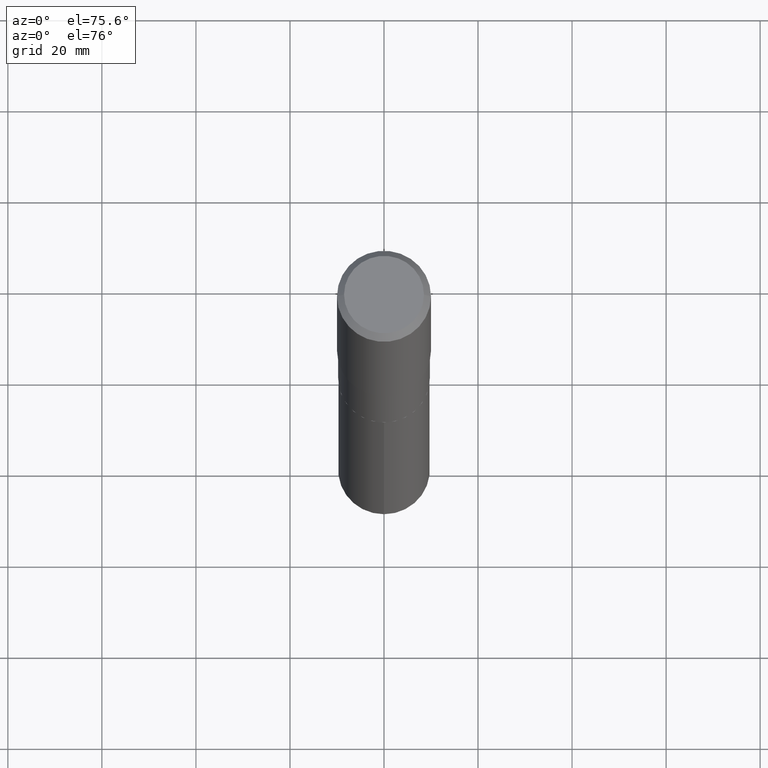
[diagram: clean part render]
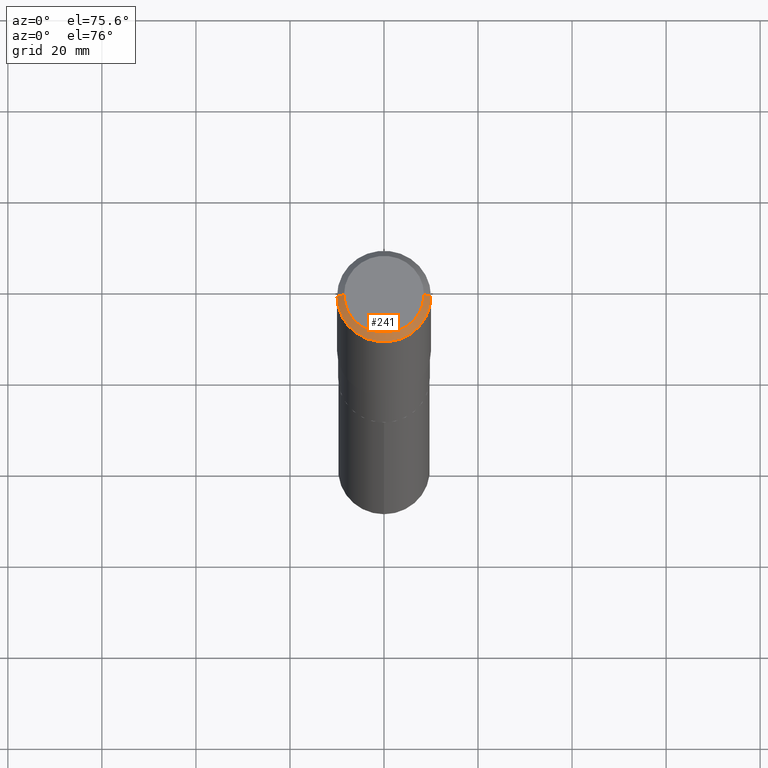
[diagram: same view with one face highlighted and labeled with its STEP entity id]
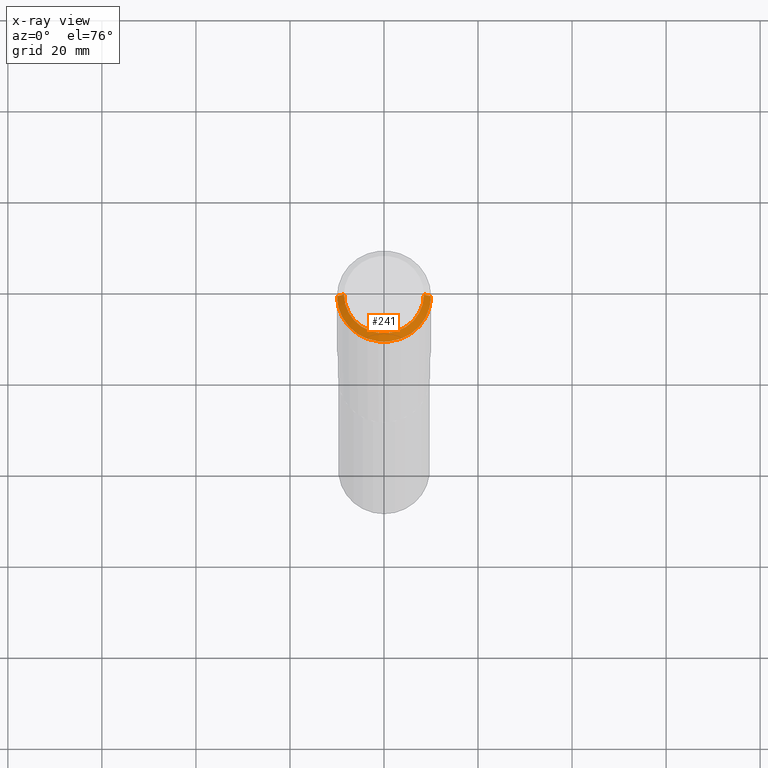
[diagram: x-ray of the same camera — body ghosted, the highlighted face saturated]
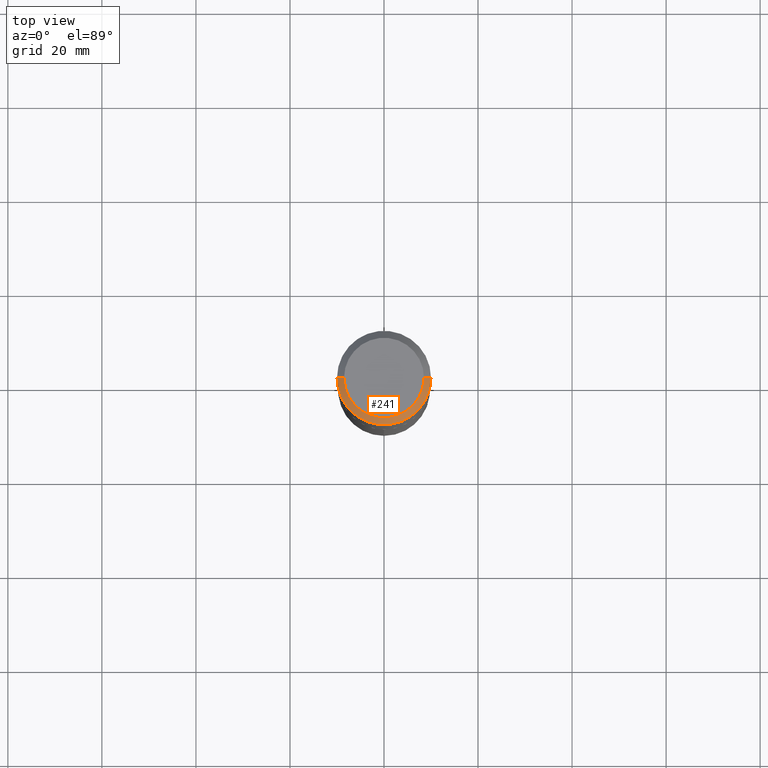
[diagram: same view with one face highlighted and labeled with its STEP entity id]
A machine part, auxiliary view. The second image highlights one B-rep face of the part: STEP entity #241.
The next image is the same camera in x-ray: the body ghosted, the highlighted face saturated — about 0% of this face is hidden behind the body in this view.
A second angle (top view) of the same face is appended — the face is thin or edge-on in the first view.
In plain terms, the highlighted conical surface has half-angle 45 deg.
Its self-contained STEP definition (entity closure, byte-faithful):
#18 = ORIENTED_EDGE ( 'NONE', *, *, #490, .T. ) ;
#25 = CARTESIAN_POINT ( 'NONE',  ( 0.3937000000000000499, -2.907167492188035412E-15, -0.05905500000000039190 ) ) ;
#50 = VERTEX_POINT ( 'NONE', #391 ) ;
#63 = DIRECTION ( 'NONE',  ( 2.445468806185136597E-29, -3.491481338843145583E-15, -1.000000000000000000 ) ) ;
#87 = VECTOR ( 'NONE', #101, 39.37007874015748143 ) ;
#98 = DIRECTION ( 'NONE',  ( 1.000000000000000000, -6.982962677686267499E-15, 4.876152824003125403E-29 ) ) ;
#101 = DIRECTION ( 'NONE',  ( -0.7071067811865450192, 2.468850131082230634E-15, -0.7071067811865500152 ) ) ;
#114 = CARTESIAN_POINT ( 'NONE',  ( 0.3937000000000000499, -2.955381836670466588E-15, -0.05905500000000039190 ) ) ;
#129 = CARTESIAN_POINT ( 'NONE',  ( 0.3346450000000000258, -2.601499422326145188E-15, 4.096137381465387809E-18 ) ) ;
#146 = DIRECTION ( 'NONE',  ( -2.445468806185136597E-29, 3.491481338843145583E-15, 1.000000000000000000 ) ) ;
#156 = VERTEX_POINT ( 'NONE', #114 ) ;
#163 = CARTESIAN_POINT ( 'NONE',  ( 1.444171603492641897E-30, -2.061894304653833219E-16, -0.05905500000000039190 ) ) ;
#171 = ORIENTED_EDGE ( 'NONE', *, *, #211, .F. ) ;
#199 = CIRCLE ( 'NONE', #329, 0.3937000000000000499 ) ;
#211 = EDGE_CURVE ( 'NONE', #50, #324, #416, .T. ) ;
#233 = AXIS2_PLACEMENT_3D ( 'NONE', #251, #63, #330 ) ;
#241 = ADVANCED_FACE ( 'NONE', ( #323 ), #449, .T. ) ;
#242 = VERTEX_POINT ( 'NONE', #404 ) ;
#251 = CARTESIAN_POINT ( 'NONE',  ( 1.444171603492641897E-30, -2.061894304653833219E-16, -0.05905500000000039190 ) ) ;
#253 = EDGE_LOOP ( 'NONE', ( #431, #171, #445, #18 ) ) ;
#280 = LINE ( 'NONE', #436, #87 ) ;
#287 = LINE ( 'NONE', #25, #307 ) ;
#307 = VECTOR ( 'NONE', #443, 39.37007874015748143 ) ;
#319 = CARTESIAN_POINT ( 'NONE',  ( -1.001697619218024707E-46, 1.430158722866394097E-32, 4.096137381448120692E-18 ) ) ;
#323 = FACE_OUTER_BOUND ( 'NONE', #253, .T. ) ;
#324 = VERTEX_POINT ( 'NONE', #129 ) ;
#329 = AXIS2_PLACEMENT_3D ( 'NONE', #163, #458, #419 ) ;
#330 = DIRECTION ( 'NONE',  ( -1.000000000000000000, 6.982962677686265922E-15, 0.000000000000000000 ) ) ;
#348 = EDGE_CURVE ( 'NONE', #50, #242, #280, .T. ) ;
#391 = CARTESIAN_POINT ( 'NONE',  ( -0.3346450000000000258, 2.439908260507010921E-15, 4.096137381431418257E-18 ) ) ;
#404 = CARTESIAN_POINT ( 'NONE',  ( -0.3937000000000000499, -6.122224563579416798E-16, -0.05905500000000039190 ) ) ;
#410 = EDGE_CURVE ( 'NONE', #324, #156, #287, .T. ) ;
#416 = CIRCLE ( 'NONE', #464, 0.3346450000000000258 ) ;
#419 = DIRECTION ( 'NONE',  ( 1.000000000000000000, -6.982962677686265922E-15, 0.000000000000000000 ) ) ;
#431 = ORIENTED_EDGE ( 'NONE', *, *, #410, .F. ) ;
#436 = CARTESIAN_POINT ( 'NONE',  ( -0.3937000000000000499, 2.543002975739700240E-15, -0.05905500000000039190 ) ) ;
#443 = DIRECTION ( 'NONE',  ( 0.7071067811865450192, -7.319954787623246579E-15, -0.7071067811865500152 ) ) ;
#445 = ORIENTED_EDGE ( 'NONE', *, *, #348, .T. ) ;
#449 = CONICAL_SURFACE ( 'NONE', #233, 0.3937000000000000499, 0.7853981633974447263 ) ;
#458 = DIRECTION ( 'NONE',  ( -2.445468806185136597E-29, 3.491481338843145583E-15, 1.000000000000000000 ) ) ;
#464 = AXIS2_PLACEMENT_3D ( 'NONE', #319, #146, #98 ) ;
#490 = EDGE_CURVE ( 'NONE', #242, #156, #199, .T. ) ;